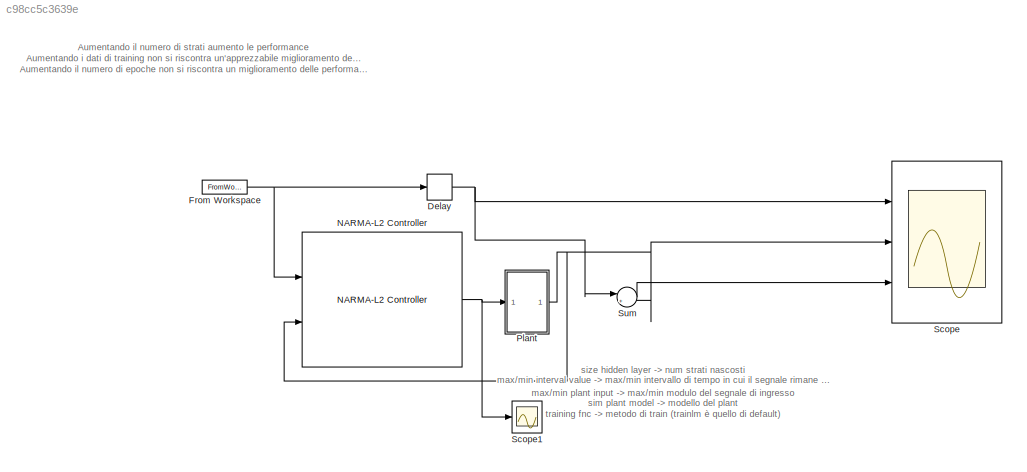
MODEL slx_c98cc5c3639e
KIND model
CONFIG AbsTol = auto
CONFIG EnableMultiTasking = off
CONFIG FixedStep = 1
CONFIG MaxStep = auto
CONFIG MinStep = auto
CONFIG RelTol = 1e-3
CONFIG SampleTimeConstraint = Unconstrained
CONFIG Solver = FixedStepDiscrete
CONFIG SolverName = FixedStepDiscrete
CONFIG StartTime = 0.0
CONFIG StopTime = 1000
BLOCK [Delay] Delay
  DelayLength = 1
  InputPortMap = u0
  Ports = [1, 1]
BLOCK [FromWorkspace] From Workspace
  SampleTime = 0
  VariableName = yr
  ZeroCross = on
BLOCK [Reference] NARMA-L2 Controller  REF=neural/Control Systems/NARMA-L2 Controller
  Ports = [2, 1]
  SourceBlock = neural/Control Systems/NARMA-L2 Controller
  SourceProductBaseCode = NN
  SourceProductName = Neural Network Toolbox
  SourceType = NARMA-L2 Controller
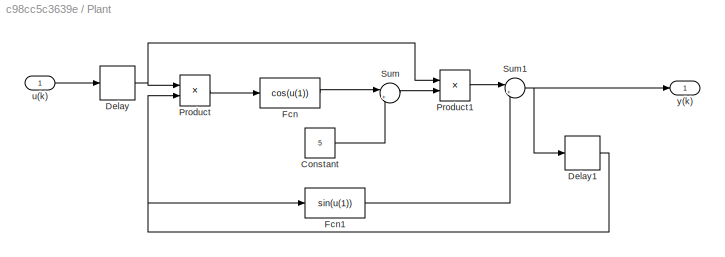
BLOCK [SubSystem] Plant 
  Ports = [1, 1]
  RequestExecContextInheritance = off
BLOCK [Constant] Plant /Constant
  Value = 5
BLOCK [Delay] Plant /Delay
  DelayLength = 1
  InitialCondition = 0
  InputPortMap = u0
  Ports = [1, 1]
BLOCK [Delay] Plant /Delay1
  DelayLength = 1
  InitialCondition = 0
  InputPortMap = u0
  Ports = [1, 1]
BLOCK [Fcn] Plant /Fcn
  Expr = cos(u(1))
BLOCK [Fcn] Plant /Fcn1
  Expr = sin(u(1))
BLOCK [Product] Plant /Product
  InputSameDT = off
  OutDataTypeStr = Inherit: Inherit via internal rule
  Ports = [2, 1]
  RndMeth = Floor
  SaturateOnIntegerOverflow = off
BLOCK [Product] Plant /Product1
  InputSameDT = off
  OutDataTypeStr = Inherit: Inherit via internal rule
  Ports = [2, 1]
  RndMeth = Floor
  SaturateOnIntegerOverflow = off
BLOCK [Sum] Plant /Sum
  IconShape = round
  InputSameDT = off
  Inputs = |++
  OutDataTypeStr = Inherit: Inherit via internal rule
  Ports = [2, 1]
  SaturateOnIntegerOverflow = off
BLOCK [Sum] Plant /Sum1
  IconShape = round
  InputSameDT = off
  Inputs = |++
  OutDataTypeStr = Inherit: Inherit via internal rule
  Ports = [2, 1]
  SaturateOnIntegerOverflow = off
BLOCK [Inport] Plant /u(k)
  IconDisplay = Port number
BLOCK [Outport] Plant /y(k)
  IconDisplay = Port number
BLOCK [Scope] Scope
  Floating = off
  NumInputPorts = 3
  Ports = [3]
  ScopeSpecificationString = Simulink.scopes.TimeScopeBlockCfg('CurrentConfiguration', extmgr.ConfigurationSet(extmgr.Configuration('Core','General UI',true),extmgr.Configuration('Core','Source UI',true),extmgr.Configuration('Sources','WiredSimulink',true),extmgr.Configuration('Visuals','Time Domain',true,'SerializedDisplays',{struct('MinYLimReal','-4.40018','MaxYLimReal','4.40018','YLabelReal','','MinYLimMag','0.00000','MaxY...<+2708ch>
BLOCK [Scope] Scope1
  Floating = off
  NumInputPorts = 1
  Ports = [1]
  ScopeSpecificationString = Simulink.scopes.TimeScopeBlockCfg('CurrentConfiguration', extmgr.ConfigurationSet(extmgr.Configuration('Core','General UI',true),extmgr.Configuration('Core','Source UI',true),extmgr.Configuration('Sources','WiredSimulink',true,'DataLoggingVariableName','ScopeData1'),extmgr.Configuration('Visuals','Time Domain',true,'SerializedDisplays',{struct('MinYLimReal','-0.58846','MaxYLimReal','0.6801','YLabe...<+1433ch>
BLOCK [Sum] Sum
  IconShape = round
  InputSameDT = off
  Inputs = |+-
  OutDataTypeStr = Inherit: Inherit via internal rule
  Ports = [2, 1]
  SaturateOnIntegerOverflow = off
ANNOTATION (root): Aumentando il numero di strati aumento le performance Aumentando i dati di training non si riscontra un'apprezzabile miglioramento delle performance Aumentando il numero di epoche non si riscontra un miglioramento delle performance
ANNOTATION (root): size hidden layer -> num strati nascosti max/min plant input -> max/min modulo del segnale di ingresso max/min interval value -> max/min intervallo di tempo in cui il segnale rimane costante sim plant model -> modello del plant training fnc -> metodo di train (trainlm è quello di default)
NET Delay:1 -> Scope:1, Sum:1
NET From Workspace:1 -> Delay:1, NARMA-L2 Controller:1
NET NARMA-L2 Controller:1 -> Plant :1, Scope1:1
LINE Plant /Constant:1 -> Plant /Sum:2
NET Plant /Delay1:1 -> Plant /Fcn1:1, Plant /Product:2
NET Plant /Delay:1 -> Plant /Product1:1, Plant /Product:1
LINE Plant /Fcn1:1 -> Plant /Sum1:2
LINE Plant /Fcn:1 -> Plant /Sum:1
LINE Plant /Product1:1 -> Plant /Sum1:1
LINE Plant /Product:1 -> Plant /Fcn:1
NET Plant /Sum1:1 -> Plant /Delay1:1, Plant /y(k):1
LINE Plant /Sum:1 -> Plant /Product1:2
LINE Plant /u(k):1 -> Plant /Delay:1
NET Plant :1 -> NARMA-L2 Controller:2, Scope:2, Sum:2
LINE Sum:1 -> Scope:3
note: NET lines group one-source signal fan-out (src -> all destinations, sorted); 1:1 wires keep LINE
